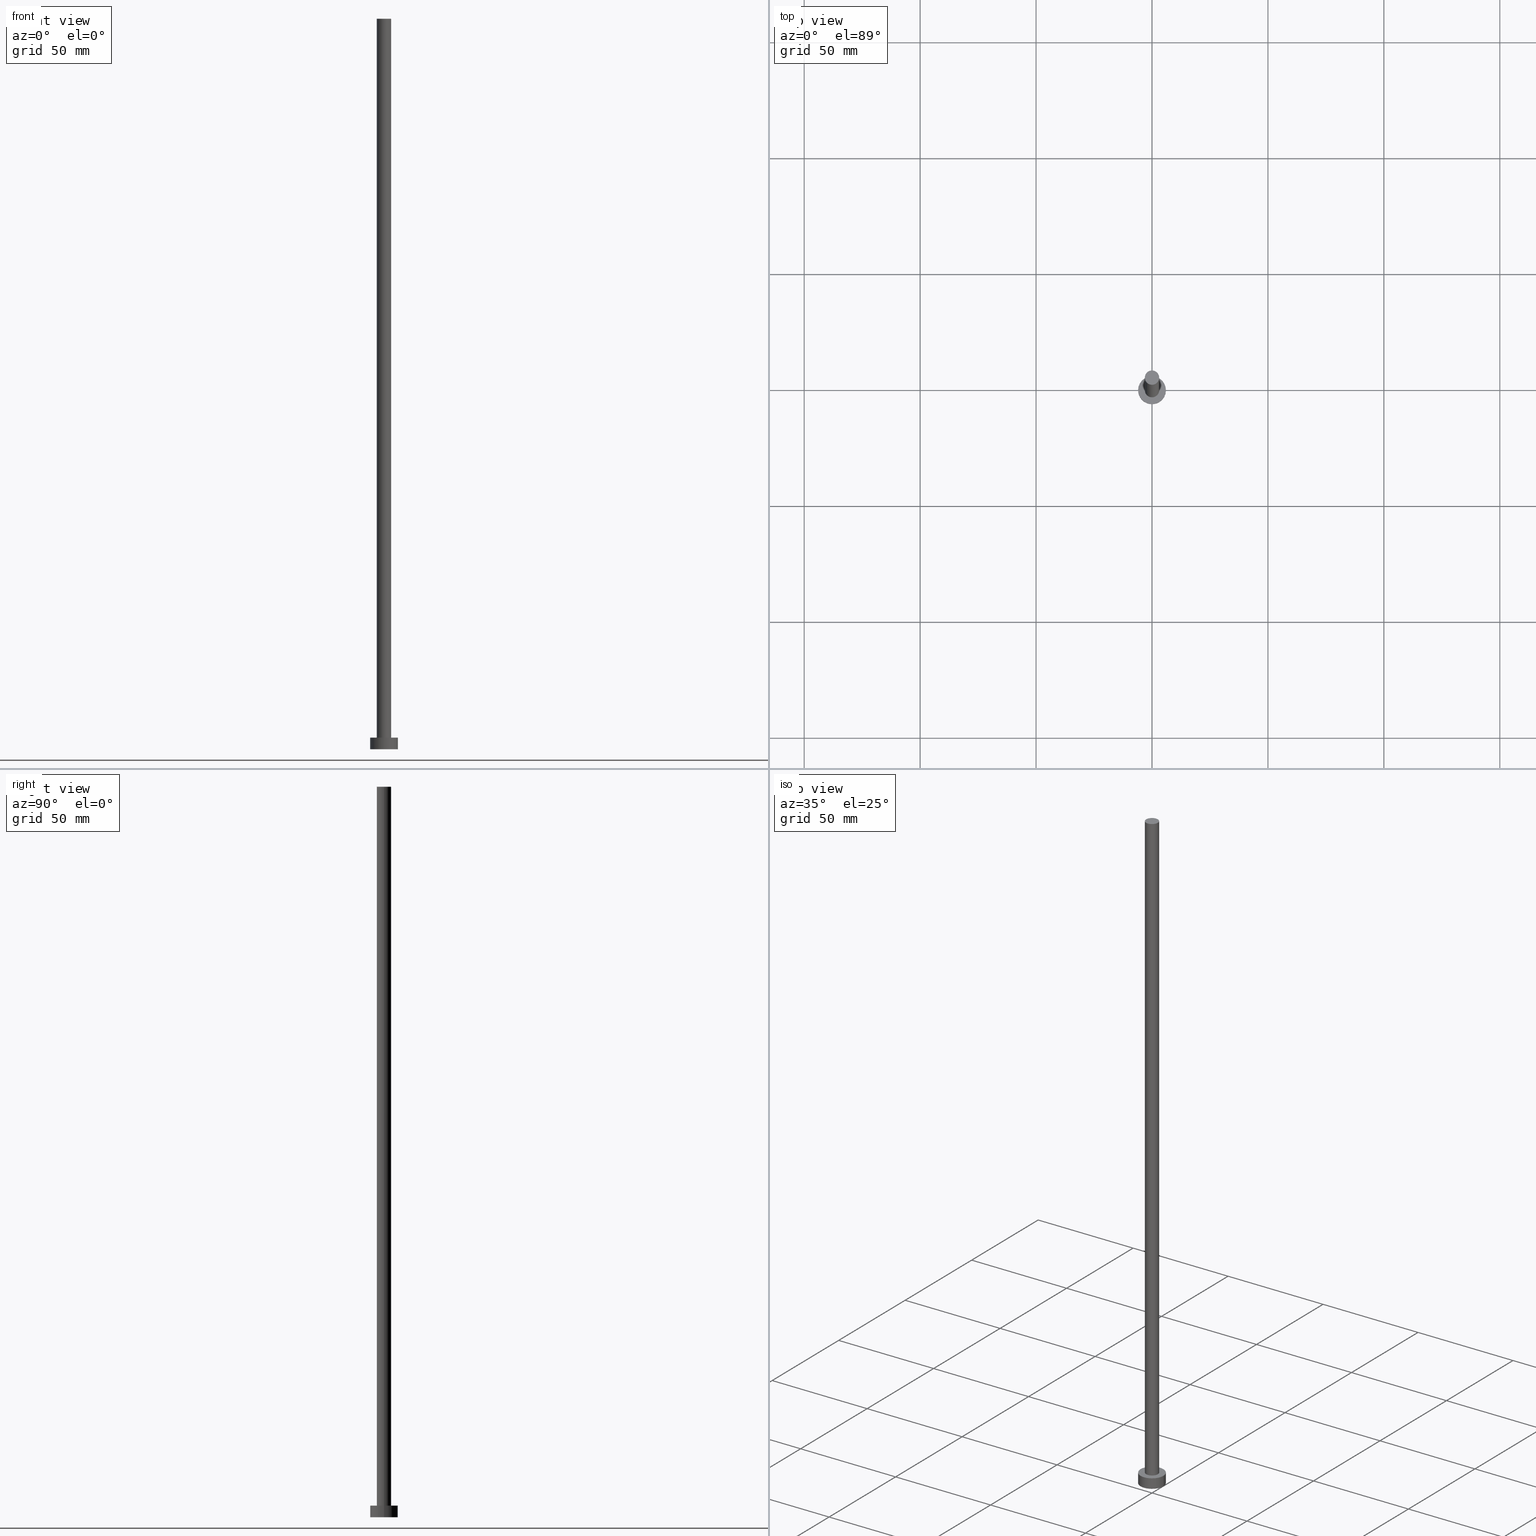
[diagram: canonical four-view strip — front | top / right | iso, engineering-drawing reading convention]
A machine part, canonical four-view strip (front | top / right | iso — engineering-drawing reading convention). The complete STEP part file that produces these views, byte-faithful:
ISO-10303-21;
HEADER;
FILE_DESCRIPTION (( 'STEP AP203' ),
    '1' );
FILE_NAME ('0318.STEP',
    '2023-02-13T15:20:07',
    ( '' ),
    ( '' ),
    'SwSTEP 2.0',
    'SolidWorks 2019',
    '' );
FILE_SCHEMA (( 'CONFIG_CONTROL_DESIGN' ));
ENDSEC;

DATA;
#1 = LOCAL_TIME ( 16, 20, 7.000000000000000000, #76 ) ;
#2 = DIRECTION ( 'NONE',  ( -0.000000000000000000, -0.000000000000000000, -1.000000000000000000 ) ) ;
#3 = UNCERTAINTY_MEASURE_WITH_UNIT (LENGTH_MEASURE( 1.000000000000000082E-05 ), #94, 'distance_accuracy_value', 'NONE');
#4 = ADVANCED_FACE ( 'NONE', ( #66 ), #146, .T. ) ;
#5 = CALENDAR_DATE ( 2023, 13, 2 ) ;
#6 = VERTEX_POINT ( 'NONE', #234 ) ;
#7 = DIRECTION ( 'NONE',  ( -0.000000000000000000, -0.000000000000000000, -1.000000000000000000 ) ) ;
#8 = FACE_OUTER_BOUND ( 'NONE', #141, .T. ) ;
#9 = ADVANCED_FACE ( 'NONE', ( #148 ), #127, .T. ) ;
#10 = LOCAL_TIME ( 16, 20, 7.000000000000000000, #61 ) ;
#11 = ORIENTED_EDGE ( 'NONE', *, *, #18, .F. ) ;
#12 = DIRECTION ( 'NONE',  ( 0.000000000000000000, 0.000000000000000000, 1.000000000000000000 ) ) ;
#13 = ADVANCED_FACE ( 'NONE', ( #8 ), #42, .T. ) ;
#14 = CARTESIAN_POINT ( 'NONE',  ( 0.000000000000000000, 0.000000000000000000, 0.000000000000000000 ) ) ;
#15 = CC_DESIGN_APPROVAL ( #119, ( #172 ) ) ;
#16 = DIRECTION ( 'NONE',  ( -0.000000000000000000, -0.000000000000000000, -1.000000000000000000 ) ) ;
#17 = DATE_TIME_ROLE ( 'creation_date' ) ;
#18 = EDGE_CURVE ( 'NONE', #6, #193, #121, .T. ) ;
#19 = ORIENTED_EDGE ( 'NONE', *, *, #79, .F. ) ;
#20 = CALENDAR_DATE ( 2023, 13, 2 ) ;
#21 = COORDINATED_UNIVERSAL_TIME_OFFSET ( 1, 0, .AHEAD. ) ;
#22 = DIRECTION ( 'NONE',  ( 0.000000000000000000, 0.000000000000000000, 1.000000000000000000 ) ) ;
#23 = DIRECTION ( 'NONE',  ( -1.000000000000000000, 0.000000000000000000, 0.000000000000000000 ) ) ;
#24 = PERSON_AND_ORGANIZATION ( #58, #64 ) ;
#25 = CARTESIAN_POINT ( 'NONE',  ( 0.000000000000000000, 0.000000000000000000, 0.000000000000000000 ) ) ;
#26 = ORIENTED_EDGE ( 'NONE', *, *, #36, .T. ) ;
#27 = ORIENTED_EDGE ( 'NONE', *, *, #167, .F. ) ;
#28 = DIRECTION ( 'NONE',  ( 1.000000000000000000, 0.000000000000000000, 0.000000000000000000 ) ) ;
#29 = CARTESIAN_POINT ( 'NONE',  ( -3.100000000000000089, 0.000000000000000000, 315.0000000000000000 ) ) ;
#30 = VECTOR ( 'NONE', #2, 1000.000000000000000 ) ;
#31 = ADVANCED_FACE ( 'NONE', ( #217 ), #196, .F. ) ;
#32 = LINE ( 'NONE', #47, #30 ) ;
#33 = CARTESIAN_POINT ( 'NONE',  ( 3.100000000000000089, 3.796405077356794918E-16, 315.0000000000000000 ) ) ;
#34 = DIRECTION ( 'NONE',  ( -1.000000000000000000, 0.000000000000000000, 0.000000000000000000 ) ) ;
#35 = APPROVAL_DATE_TIME ( #73, #119 ) ;
#36 = EDGE_CURVE ( 'NONE', #84, #46, #68, .T. ) ;
#37 = VERTEX_POINT ( 'NONE', #130 ) ;
#38 = APPLICATION_CONTEXT ( 'configuration controlled 3d designs of mechanical parts and assemblies' ) ;
#39 = ORIENTED_EDGE ( 'NONE', *, *, #105, .T. ) ;
#40 = APPROVAL_STATUS ( 'not_yet_approved' ) ;
#41 = AXIS2_PLACEMENT_3D ( 'NONE', #152, #48, #151 ) ;
#42 = CYLINDRICAL_SURFACE ( 'NONE', #99, 3.100000000000000089 ) ;
#43 = DIRECTION ( 'NONE',  ( -1.000000000000000000, 0.000000000000000000, 0.000000000000000000 ) ) ;
#44 = DIRECTION ( 'NONE',  ( 1.000000000000000000, 0.000000000000000000, -0.000000000000000000 ) ) ;
#45 = LOCAL_TIME ( 16, 20, 7.000000000000000000, #55 ) ;
#46 = VERTEX_POINT ( 'NONE', #149 ) ;
#47 = CARTESIAN_POINT ( 'NONE',  ( 6.000000000000000888, 7.347880794884120722E-16, 5.000000000000000000 ) ) ;
#48 = DIRECTION ( 'NONE',  ( 0.000000000000000000, 0.000000000000000000, 1.000000000000000000 ) ) ;
#49 = DIRECTION ( 'NONE',  ( 1.000000000000000000, 0.000000000000000000, 0.000000000000000000 ) ) ;
#50 = LOCAL_TIME ( 16, 20, 7.000000000000000000, #21 ) ;
#51 = CC_DESIGN_PERSON_AND_ORGANIZATION_ASSIGNMENT ( #128, #157, ( #172 ) ) ;
#52 = CARTESIAN_POINT ( 'NONE',  ( 0.000000000000000000, 0.000000000000000000, 5.000000000000000000 ) ) ;
#53 = PERSON_AND_ORGANIZATION ( #58, #64 ) ;
#54 = APPLICATION_CONTEXT ( 'configuration controlled 3d designs of mechanical parts and assemblies' ) ;
#55 = COORDINATED_UNIVERSAL_TIME_OFFSET ( 1, 0, .AHEAD. ) ;
#56 = VERTEX_POINT ( 'NONE', #219 ) ;
#57 = EDGE_CURVE ( 'NONE', #37, #83, #117, .T. ) ;
#58 = PERSON ( 'NEUR�EN�', 'NEUR�EN�', 'NEUR�EN�', ('NEUR�EN�'), ('NEUR�EN�'), ('NEUR�EN�') ) ;
#59 = PERSON_AND_ORGANIZATION_ROLE ( 'creator' ) ;
#60 = ORIENTED_EDGE ( 'NONE', *, *, #93, .F. ) ;
#61 = COORDINATED_UNIVERSAL_TIME_OFFSET ( 1, 0, .AHEAD. ) ;
#62 = ORIENTED_EDGE ( 'NONE', *, *, #245, .T. ) ;
#63 = CC_DESIGN_DATE_AND_TIME_ASSIGNMENT ( #104, #81, ( #74 ) ) ;
#64 = ORGANIZATION ( 'NEUR�EN�', 'NEUR�EN�', '' ) ;
#65 = ORIENTED_EDGE ( 'NONE', *, *, #79, .T. ) ;
#66 = FACE_OUTER_BOUND ( 'NONE', #164, .T. ) ;
#67 = DIRECTION ( 'NONE',  ( 1.000000000000000000, 0.000000000000000000, 0.000000000000000000 ) ) ;
#68 = CIRCLE ( 'NONE', #154, 3.100000000000000089 ) ;
#69 = DIRECTION ( 'NONE',  ( 0.000000000000000000, 0.000000000000000000, 1.000000000000000000 ) ) ;
#70 = DIRECTION ( 'NONE',  ( 0.000000000000000000, 0.000000000000000000, 1.000000000000000000 ) ) ;
#71 = DIRECTION ( 'NONE',  ( -0.000000000000000000, -0.000000000000000000, -1.000000000000000000 ) ) ;
#72 = APPROVAL_PERSON_ORGANIZATION ( #165, #119, #142 ) ;
#73 = DATE_AND_TIME ( #20, #50 ) ;
#74 = SECURITY_CLASSIFICATION ( '', '', #230 ) ;
#75 = ORIENTED_EDGE ( 'NONE', *, *, #93, .T. ) ;
#76 = COORDINATED_UNIVERSAL_TIME_OFFSET ( 1, 0, .AHEAD. ) ;
#77 = ORIENTED_EDGE ( 'NONE', *, *, #18, .T. ) ;
#78 = PERSON_AND_ORGANIZATION_ROLE ( 'classification_officer' ) ;
#79 = EDGE_CURVE ( 'NONE', #56, #85, #86, .T. ) ;
#80 = CARTESIAN_POINT ( 'NONE',  ( 0.000000000000000000, 0.000000000000000000, 5.000000000000000000 ) ) ;
#81 = DATE_TIME_ROLE ( 'classification_date' ) ;
#82 = ORIENTED_EDGE ( 'NONE', *, *, #245, .F. ) ;
#83 = VERTEX_POINT ( 'NONE', #188 ) ;
#84 = VERTEX_POINT ( 'NONE', #181 ) ;
#85 = VERTEX_POINT ( 'NONE', #226 ) ;
#86 = CIRCLE ( 'NONE', #242, 6.000000000000000888 ) ;
#87 = VECTOR ( 'NONE', #71, 1000.000000000000000 ) ;
#88 = CARTESIAN_POINT ( 'NONE',  ( 0.000000000000000000, 0.000000000000000000, 315.0000000000000000 ) ) ;
#89 = CARTESIAN_POINT ( 'NONE',  ( 0.000000000000000000, 0.000000000000000000, 5.000000000000000000 ) ) ;
#90 =( NAMED_UNIT ( * ) PLANE_ANGLE_UNIT ( ) SI_UNIT ( $, .RADIAN. ) );
#91 = DIRECTION ( 'NONE',  ( 0.000000000000000000, 0.000000000000000000, 1.000000000000000000 ) ) ;
#92 = AXIS2_PLACEMENT_3D ( 'NONE', #231, #166, #251 ) ;
#93 = EDGE_CURVE ( 'NONE', #83, #56, #221, .T. ) ;
#94 =( LENGTH_UNIT ( ) NAMED_UNIT ( * ) SI_UNIT ( .MILLI., .METRE. ) );
#95 = APPROVAL_PERSON_ORGANIZATION ( #192, #159, #156 ) ;
#96 = CC_DESIGN_PERSON_AND_ORGANIZATION_ASSIGNMENT ( #53, #163, ( #177 ) ) ;
#97 = ORIENTED_EDGE ( 'NONE', *, *, #200, .T. ) ;
#98 = CIRCLE ( 'NONE', #116, 6.000000000000000888 ) ;
#99 = AXIS2_PLACEMENT_3D ( 'NONE', #103, #7, #43 ) ;
#100 = CALENDAR_DATE ( 2023, 13, 2 ) ;
#101 = DIRECTION ( 'NONE',  ( 1.000000000000000000, 0.000000000000000000, 0.000000000000000000 ) ) ;
#102 = PERSON_AND_ORGANIZATION ( #58, #64 ) ;
#103 = CARTESIAN_POINT ( 'NONE',  ( 0.000000000000000000, 0.000000000000000000, 315.0000000000000000 ) ) ;
#104 = DATE_AND_TIME ( #138, #45 ) ;
#105 = EDGE_CURVE ( 'NONE', #46, #84, #158, .T. ) ;
#106 = ORIENTED_EDGE ( 'NONE', *, *, #244, .F. ) ;
#107 = PRODUCT_DEFINITION_FORMATION_WITH_SPECIFIED_SOURCE ( 'LIBOVOLN�', '', #177, .NOT_KNOWN. ) ;
#108 = ORIENTED_EDGE ( 'NONE', *, *, #57, .T. ) ;
#109 = CARTESIAN_POINT ( 'NONE',  ( 0.000000000000000000, 0.000000000000000000, 5.000000000000000000 ) ) ;
#110 = CC_DESIGN_PERSON_AND_ORGANIZATION_ASSIGNMENT ( #24, #59, ( #107 ) ) ;
#111 = AXIS2_PLACEMENT_3D ( 'NONE', #113, #202, #237 ) ;
#112 = DIRECTION ( 'NONE',  ( -1.000000000000000000, 0.000000000000000000, 0.000000000000000000 ) ) ;
#113 = CARTESIAN_POINT ( 'NONE',  ( 0.000000000000000000, 0.000000000000000000, 0.000000000000000000 ) ) ;
#114 = APPROVAL ( #214, 'NEUR�EN�' ) ;
#115 = CARTESIAN_POINT ( 'NONE',  ( 3.100000000000000089, 3.796405077356794918E-16, 5.000000000000000000 ) ) ;
#116 = AXIS2_PLACEMENT_3D ( 'NONE', #14, #239, #175 ) ;
#117 = CIRCLE ( 'NONE', #194, 6.000000000000000888 ) ;
#118 = DATE_AND_TIME ( #126, #1 ) ;
#119 = APPROVAL ( #232, 'NEUR�EN�' ) ;
#120 = ORIENTED_EDGE ( 'NONE', *, *, #205, .T. ) ;
#121 = CIRCLE ( 'NONE', #92, 3.100000000000000089 ) ;
#122 = AXIS2_PLACEMENT_3D ( 'NONE', #224, #70, #178 ) ;
#123 = ORIENTED_EDGE ( 'NONE', *, *, #244, .T. ) ;
#124 = VECTOR ( 'NONE', #137, 1000.000000000000000 ) ;
#125 = AXIS2_PLACEMENT_3D ( 'NONE', #89, #91, #28 ) ;
#126 = CALENDAR_DATE ( 2023, 13, 2 ) ;
#127 = PLANE ( 'NONE',  #174 ) ;
#128 = PERSON_AND_ORGANIZATION ( #58, #64 ) ;
#129 = DIRECTION ( 'NONE',  ( -0.000000000000000000, -0.000000000000000000, -1.000000000000000000 ) ) ;
#130 = CARTESIAN_POINT ( 'NONE',  ( 6.000000000000000888, 7.347880794884120722E-16, 5.000000000000000000 ) ) ;
#131 =( GEOMETRIC_REPRESENTATION_CONTEXT ( 3 ) GLOBAL_UNCERTAINTY_ASSIGNED_CONTEXT ( ( #3 ) ) GLOBAL_UNIT_ASSIGNED_CONTEXT ( ( #94, #90, #133 ) ) REPRESENTATION_CONTEXT ( 'NONE', 'WORKASPACE' ) );
#132 = DIRECTION ( 'NONE',  ( 1.000000000000000000, 0.000000000000000000, -0.000000000000000000 ) ) ;
#133 =( NAMED_UNIT ( * ) SI_UNIT ( $, .STERADIAN. ) SOLID_ANGLE_UNIT ( ) );
#134 = AXIS2_PLACEMENT_3D ( 'NONE', #25, #12, #44 ) ;
#135 = DIRECTION ( 'NONE',  ( -0.000000000000000000, -0.000000000000000000, -1.000000000000000000 ) ) ;
#136 = CC_DESIGN_PERSON_AND_ORGANIZATION_ASSIGNMENT ( #187, #78, ( #74 ) ) ;
#137 = DIRECTION ( 'NONE',  ( -0.000000000000000000, -0.000000000000000000, -1.000000000000000000 ) ) ;
#138 = CALENDAR_DATE ( 2023, 13, 2 ) ;
#139 = PRODUCT_RELATED_PRODUCT_CATEGORY ( 'detail', '', ( #177 ) ) ;
#140 = AXIS2_PLACEMENT_3D ( 'NONE', #236, #199, #112 ) ;
#141 = EDGE_LOOP ( 'NONE', ( #228, #215, #120, #82 ) ) ;
#142 = APPROVAL_ROLE ( '' ) ;
#143 = EDGE_LOOP ( 'NONE', ( #11, #170 ) ) ;
#144 = CIRCLE ( 'NONE', #125, 6.000000000000000888 ) ;
#145 = APPLICATION_PROTOCOL_DEFINITION ( 'international standard', 'config_control_design', 1994, #38 ) ;
#146 = CYLINDRICAL_SURFACE ( 'NONE', #250, 6.000000000000000888 ) ;
#147 = ADVANCED_FACE ( 'NONE', ( #180 ), #201, .T. ) ;
#148 = FACE_OUTER_BOUND ( 'NONE', #207, .T. ) ;
#149 = CARTESIAN_POINT ( 'NONE',  ( 3.100000000000000089, 3.796405077356794918E-16, 315.0000000000000000 ) ) ;
#150 = ADVANCED_BREP_SHAPE_REPRESENTATION ( '0318', ( #209, #111 ), #131 ) ;
#151 = DIRECTION ( 'NONE',  ( 1.000000000000000000, 0.000000000000000000, 0.000000000000000000 ) ) ;
#152 = CARTESIAN_POINT ( 'NONE',  ( 0.000000000000000000, 0.000000000000000000, 315.0000000000000000 ) ) ;
#153 = FACE_OUTER_BOUND ( 'NONE', #169, .T. ) ;
#154 = AXIS2_PLACEMENT_3D ( 'NONE', #253, #235, #67 ) ;
#155 = FACE_BOUND ( 'NONE', #143, .T. ) ;
#156 = APPROVAL_ROLE ( '' ) ;
#157 = PERSON_AND_ORGANIZATION_ROLE ( 'creator' ) ;
#158 = CIRCLE ( 'NONE', #41, 3.100000000000000089 ) ;
#159 = APPROVAL ( #40, 'NEUR�EN�' ) ;
#160 = AXIS2_PLACEMENT_3D ( 'NONE', #52, #204, #49 ) ;
#161 = ADVANCED_FACE ( 'NONE', ( #153 ), #241, .T. ) ;
#162 = APPROVAL_PERSON_ORGANIZATION ( #249, #114, #247 ) ;
#163 = PERSON_AND_ORGANIZATION_ROLE ( 'design_owner' ) ;
#164 = EDGE_LOOP ( 'NONE', ( #210, #123, #97, #60 ) ) ;
#165 = PERSON_AND_ORGANIZATION ( #58, #64 ) ;
#166 = DIRECTION ( 'NONE',  ( 0.000000000000000000, 0.000000000000000000, 1.000000000000000000 ) ) ;
#167 = EDGE_CURVE ( 'NONE', #83, #37, #144, .T. ) ;
#168 = AXIS2_PLACEMENT_3D ( 'NONE', #88, #135, #34 ) ;
#169 = EDGE_LOOP ( 'NONE', ( #191, #218, #62, #77 ) ) ;
#170 = ORIENTED_EDGE ( 'NONE', *, *, #205, .F. ) ;
#171 = PRODUCT_DEFINITION_SHAPE ( 'NONE', 'NONE',  #172 ) ;
#172 = PRODUCT_DEFINITION ( 'NEZN�M�', '', #107, #182 ) ;
#173 = DIRECTION ( 'NONE',  ( 0.000000000000000000, 0.000000000000000000, 1.000000000000000000 ) ) ;
#174 = AXIS2_PLACEMENT_3D ( 'NONE', #195, #69, #132 ) ;
#175 = DIRECTION ( 'NONE',  ( 1.000000000000000000, 0.000000000000000000, 0.000000000000000000 ) ) ;
#176 = FACE_OUTER_BOUND ( 'NONE', #252, .T. ) ;
#177 = PRODUCT ( '0318', '0318', '', ( #186 ) ) ;
#178 = DIRECTION ( 'NONE',  ( 1.000000000000000000, 0.000000000000000000, -0.000000000000000000 ) ) ;
#179 = CC_DESIGN_APPROVAL ( #159, ( #74 ) ) ;
#180 = FACE_OUTER_BOUND ( 'NONE', #246, .T. ) ;
#181 = CARTESIAN_POINT ( 'NONE',  ( -3.100000000000000089, 0.000000000000000000, 315.0000000000000000 ) ) ;
#182 = DESIGN_CONTEXT ( 'detailed design', #38, 'design' ) ;
#183 = DATE_AND_TIME ( #5, #198 ) ;
#184 = VECTOR ( 'NONE', #16, 1000.000000000000000 ) ;
#185 = ADVANCED_FACE ( 'NONE', ( #155, #176 ), #240, .T. ) ;
#186 = MECHANICAL_CONTEXT ( 'NONE', #54, 'mechanical' ) ;
#187 = PERSON_AND_ORGANIZATION ( #58, #64 ) ;
#188 = CARTESIAN_POINT ( 'NONE',  ( -6.000000000000000888, 0.000000000000000000, 5.000000000000000000 ) ) ;
#189 = APPROVAL_DATE_TIME ( #118, #159 ) ;
#190 = CC_DESIGN_DATE_AND_TIME_ASSIGNMENT ( #183, #17, ( #172 ) ) ;
#191 = ORIENTED_EDGE ( 'NONE', *, *, #238, .F. ) ;
#192 = PERSON_AND_ORGANIZATION ( #58, #64 ) ;
#193 = VERTEX_POINT ( 'NONE', #115 ) ;
#194 = AXIS2_PLACEMENT_3D ( 'NONE', #109, #173, #212 ) ;
#195 = CARTESIAN_POINT ( 'NONE',  ( 0.000000000000000000, 0.000000000000000000, 315.0000000000000000 ) ) ;
#196 = PLANE ( 'NONE',  #134 ) ;
#197 = APPLICATION_PROTOCOL_DEFINITION ( 'international standard', 'config_control_design', 1994, #54 ) ;
#198 = LOCAL_TIME ( 16, 20, 7.000000000000000000, #216 ) ;
#199 = DIRECTION ( 'NONE',  ( -0.000000000000000000, -0.000000000000000000, -1.000000000000000000 ) ) ;
#200 = EDGE_CURVE ( 'NONE', #85, #56, #98, .T. ) ;
#201 = CYLINDRICAL_SURFACE ( 'NONE', #140, 6.000000000000000888 ) ;
#202 = DIRECTION ( 'NONE',  ( 0.000000000000000000, 0.000000000000000000, 1.000000000000000000 ) ) ;
#203 = CLOSED_SHELL ( 'NONE', ( #13, #4, #147, #185, #31, #161, #9 ) ) ;
#204 = DIRECTION ( 'NONE',  ( 0.000000000000000000, 0.000000000000000000, 1.000000000000000000 ) ) ;
#205 = EDGE_CURVE ( 'NONE', #193, #6, #213, .T. ) ;
#206 = CC_DESIGN_SECURITY_CLASSIFICATION ( #74, ( #107 ) ) ;
#207 = EDGE_LOOP ( 'NONE', ( #26, #39 ) ) ;
#208 = SHAPE_DEFINITION_REPRESENTATION ( #171, #150 ) ;
#209 = MANIFOLD_SOLID_BREP ( 'P�idat vysunut�m3', #203 ) ;
#210 = ORIENTED_EDGE ( 'NONE', *, *, #57, .F. ) ;
#211 = DATE_AND_TIME ( #100, #10 ) ;
#212 = DIRECTION ( 'NONE',  ( 1.000000000000000000, 0.000000000000000000, 0.000000000000000000 ) ) ;
#213 = CIRCLE ( 'NONE', #160, 3.100000000000000089 ) ;
#214 = APPROVAL_STATUS ( 'not_yet_approved' ) ;
#215 = ORIENTED_EDGE ( 'NONE', *, *, #238, .T. ) ;
#216 = COORDINATED_UNIVERSAL_TIME_OFFSET ( 1, 0, .AHEAD. ) ;
#217 = FACE_OUTER_BOUND ( 'NONE', #233, .T. ) ;
#218 = ORIENTED_EDGE ( 'NONE', *, *, #36, .F. ) ;
#219 = CARTESIAN_POINT ( 'NONE',  ( -6.000000000000000888, 0.000000000000000000, 0.000000000000000000 ) ) ;
#220 = LINE ( 'NONE', #33, #87 ) ;
#221 = LINE ( 'NONE', #255, #124 ) ;
#222 = CC_DESIGN_PERSON_AND_ORGANIZATION_ASSIGNMENT ( #102, #243, ( #107 ) ) ;
#223 = CC_DESIGN_APPROVAL ( #114, ( #107 ) ) ;
#224 = CARTESIAN_POINT ( 'NONE',  ( 0.000000000000000000, 0.000000000000000000, 5.000000000000000000 ) ) ;
#225 = LINE ( 'NONE', #29, #184 ) ;
#226 = CARTESIAN_POINT ( 'NONE',  ( 6.000000000000000888, 7.347880794884120722E-16, 0.000000000000000000 ) ) ;
#227 = APPROVAL_DATE_TIME ( #211, #114 ) ;
#228 = ORIENTED_EDGE ( 'NONE', *, *, #105, .F. ) ;
#229 = ORIENTED_EDGE ( 'NONE', *, *, #167, .T. ) ;
#230 = SECURITY_CLASSIFICATION_LEVEL ( 'unclassified' ) ;
#231 = CARTESIAN_POINT ( 'NONE',  ( 0.000000000000000000, 0.000000000000000000, 5.000000000000000000 ) ) ;
#232 = APPROVAL_STATUS ( 'not_yet_approved' ) ;
#233 = EDGE_LOOP ( 'NONE', ( #19, #248 ) ) ;
#234 = CARTESIAN_POINT ( 'NONE',  ( -3.100000000000000089, 0.000000000000000000, 5.000000000000000000 ) ) ;
#235 = DIRECTION ( 'NONE',  ( 0.000000000000000000, 0.000000000000000000, 1.000000000000000000 ) ) ;
#236 = CARTESIAN_POINT ( 'NONE',  ( 0.000000000000000000, 0.000000000000000000, 5.000000000000000000 ) ) ;
#237 = DIRECTION ( 'NONE',  ( 1.000000000000000000, 0.000000000000000000, 0.000000000000000000 ) ) ;
#238 = EDGE_CURVE ( 'NONE', #46, #193, #220, .T. ) ;
#239 = DIRECTION ( 'NONE',  ( 0.000000000000000000, 0.000000000000000000, 1.000000000000000000 ) ) ;
#240 = PLANE ( 'NONE',  #122 ) ;
#241 = CYLINDRICAL_SURFACE ( 'NONE', #168, 3.100000000000000089 ) ;
#242 = AXIS2_PLACEMENT_3D ( 'NONE', #254, #22, #101 ) ;
#243 = PERSON_AND_ORGANIZATION_ROLE ( 'design_supplier' ) ;
#244 = EDGE_CURVE ( 'NONE', #37, #85, #32, .T. ) ;
#245 = EDGE_CURVE ( 'NONE', #84, #6, #225, .T. ) ;
#246 = EDGE_LOOP ( 'NONE', ( #106, #27, #75, #65 ) ) ;
#247 = APPROVAL_ROLE ( '' ) ;
#248 = ORIENTED_EDGE ( 'NONE', *, *, #200, .F. ) ;
#249 = PERSON_AND_ORGANIZATION ( #58, #64 ) ;
#250 = AXIS2_PLACEMENT_3D ( 'NONE', #80, #129, #23 ) ;
#251 = DIRECTION ( 'NONE',  ( 1.000000000000000000, 0.000000000000000000, 0.000000000000000000 ) ) ;
#252 = EDGE_LOOP ( 'NONE', ( #229, #108 ) ) ;
#253 = CARTESIAN_POINT ( 'NONE',  ( 0.000000000000000000, 0.000000000000000000, 315.0000000000000000 ) ) ;
#254 = CARTESIAN_POINT ( 'NONE',  ( 0.000000000000000000, 0.000000000000000000, 0.000000000000000000 ) ) ;
#255 = CARTESIAN_POINT ( 'NONE',  ( -6.000000000000000888, 0.000000000000000000, 5.000000000000000000 ) ) ;
ENDSEC;
END-ISO-10303-21;
